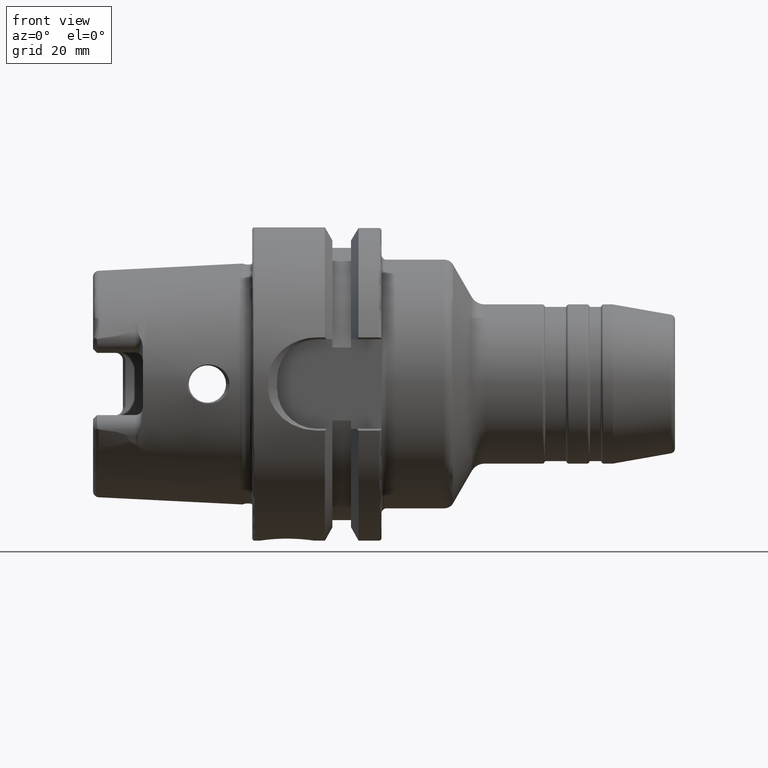
[diagram: clean part render]
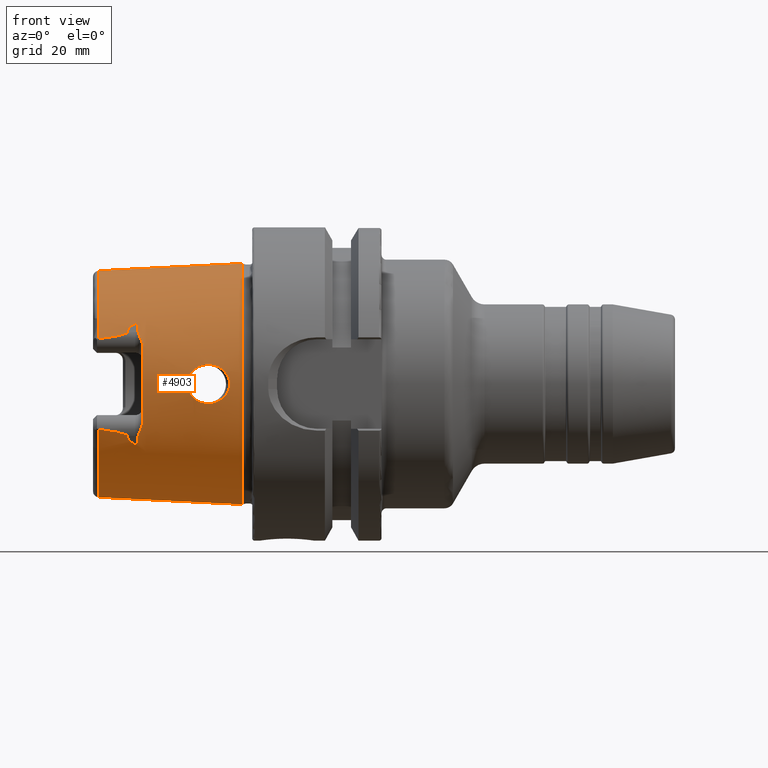
[diagram: same view with one face highlighted and labeled with its STEP entity id]
A machine part, front view. The second image highlights one B-rep face of the part: STEP entity #4903.
In plain terms, the highlighted conical surface has half-angle 2.868 deg.
Its self-contained STEP definition (entity closure, byte-faithful):
#1349=CARTESIAN_POINT('',(-3.086004333271E1,0.E0,0.E0));
#1350=DIRECTION('',(-1.E0,0.E0,0.E0));
#1351=DIRECTION('',(0.E0,0.E0,-1.E0));
#1352=AXIS2_PLACEMENT_3D('',#1349,#1350,#1351);
#1354=CARTESIAN_POINT('',(-3.086004333271E1,-2.086981840766E1,
-9.117659021249E0));
#1355=CARTESIAN_POINT('',(-3.065605186921E1,-2.087009790144E1,
-9.142546682600E0));
#1356=CARTESIAN_POINT('',(-3.026548971795E1,-2.087000011471E1,
-9.191475209956E0));
#1357=CARTESIAN_POINT('',(-2.973365321821E1,-2.086810691684E1,
-9.261644143754E0));
#1358=CARTESIAN_POINT('',(-2.925038551401E1,-2.086470072146E1,
-9.328786458642E0));
#1359=CARTESIAN_POINT('',(-2.880157988887E1,-2.085984936823E1,
-9.394516747198E0));
#1360=CARTESIAN_POINT('',(-2.838907941827E1,-2.085367010435E1,
-9.458361489324E0));
#1361=CARTESIAN_POINT('',(-2.802099682424E1,-2.084652664288E1,
-9.518574595620E0));
#1362=CARTESIAN_POINT('',(-2.767812179380E1,-2.083824707065E1,
-9.577892562152E0));
#1363=CARTESIAN_POINT('',(-2.735909724315E1,-2.082880059047E1,
-9.636540338401E0));
#1364=CARTESIAN_POINT('',(-2.707640752188E1,-2.081875776007E1,
-9.691819563709E0));
#1365=CARTESIAN_POINT('',(-2.681109569702E1,-2.080761261851E1,
-9.747101291047E0));
#1366=CARTESIAN_POINT('',(-2.656858158621E1,-2.079554827328E1,
-9.801340213004E0));
#1367=CARTESIAN_POINT('',(-2.635507856236E1,-2.078317780740E1,
-9.852543087215E0));
#1368=CARTESIAN_POINT('',(-2.614343140954E1,-2.076877229942E1,
-9.907525856621E0));
#1369=CARTESIAN_POINT('',(-2.596459737730E1,-2.075441286803E1,
-9.958294561477E0));
#1370=CARTESIAN_POINT('',(-2.579520406731E1,-2.073852104516E1,
-1.001089413177E1));
#1371=CARTESIAN_POINT('',(-2.563886330149E1,-2.072082009527E1,
-1.006541254284E1));
#1372=CARTESIAN_POINT('',(-2.551094126364E1,-2.070354791350E1,
-1.011550881391E1));
#1373=CARTESIAN_POINT('',(-2.537697699431E1,-2.068112228769E1,
-1.017650437323E1));
#1374=CARTESIAN_POINT('',(-2.527062763811E1,-2.065753992865E1,
-1.023629340194E1));
#1375=CARTESIAN_POINT('',(-2.518213991029E1,-2.063064078682E1,
-1.030035138509E1));
#1376=CARTESIAN_POINT('',(-2.511551447564E1,-2.059710280776E1,
-1.037470366444E1));
#1377=CARTESIAN_POINT('',(-2.509792629022E1,-2.057060375039E1,
-1.042902505095E1));
#1378=CARTESIAN_POINT('',(-2.509832943528E1,-2.055609878966E1,
-1.045749263925E1));
#1380=CARTESIAN_POINT('',(-2.509832943528E1,-2.055609878966E1,
-1.045749263925E1));
#1381=CARTESIAN_POINT('',(-2.509973452206E1,-2.050554446019E1,
-1.055671109738E1));
#1382=CARTESIAN_POINT('',(-2.507065476512E1,-2.040407944593E1,
-1.075584740029E1));
#1383=CARTESIAN_POINT('',(-2.492546543353E1,-2.024884407642E1,
-1.106051396733E1));
#1384=CARTESIAN_POINT('',(-2.468318136842E1,-2.009639154268E1,
-1.135971891163E1));
#1385=CARTESIAN_POINT('',(-2.435973964364E1,-1.995041487066E1,
-1.164621426170E1));
#1386=CARTESIAN_POINT('',(-2.396639941619E1,-1.981051447172E1,
-1.192078425439E1));
#1387=CARTESIAN_POINT('',(-2.366236291861E1,-1.972062082665E1,
-1.209721046657E1));
#1388=CARTESIAN_POINT('',(-2.35E1,-1.967619090430E1,-1.218440909893E1));
#1390=CARTESIAN_POINT('',(-2.35E1,-1.967619090430E1,1.218440909893E1));
#1391=CARTESIAN_POINT('',(-2.366273962512E1,-1.972072391079E1,
1.209700815256E1));
#1392=CARTESIAN_POINT('',(-2.396737226811E1,-1.981081058458E1,
1.192020310018E1));
#1393=CARTESIAN_POINT('',(-2.436114053628E1,-1.995096134710E1,
1.164514174130E1));
#1394=CARTESIAN_POINT('',(-2.468459443081E1,-2.009709754078E1,
1.135833331235E1));
#1395=CARTESIAN_POINT('',(-2.492685004054E1,-2.024992689999E1,
1.105838880642E1));
#1396=CARTESIAN_POINT('',(-2.507099685322E1,-2.040484030157E1,
1.075435413702E1));
#1397=CARTESIAN_POINT('',(-2.509972603515E1,-2.050584981529E1,
1.055611180425E1));
#1398=CARTESIAN_POINT('',(-2.509832943528E1,-2.055609878966E1,
1.045749263925E1));
#1400=CARTESIAN_POINT('',(-3.086004333271E1,-2.086981840766E1,
9.117659021249E0));
#1401=CARTESIAN_POINT('',(-3.065605186921E1,-2.087009790144E1,
9.142546682600E0));
#1402=CARTESIAN_POINT('',(-3.026548971795E1,-2.087000011471E1,
9.191475209956E0));
#1403=CARTESIAN_POINT('',(-2.973365321821E1,-2.086810691684E1,
9.261644143754E0));
#1404=CARTESIAN_POINT('',(-2.925038551401E1,-2.086470072146E1,
9.328786458642E0));
#1405=CARTESIAN_POINT('',(-2.880157988887E1,-2.085984936823E1,
9.394516747198E0));
#1406=CARTESIAN_POINT('',(-2.838907941827E1,-2.085367010435E1,
9.458361489324E0));
#1407=CARTESIAN_POINT('',(-2.802099682424E1,-2.084652664288E1,
9.518574595620E0));
#1408=CARTESIAN_POINT('',(-2.767812179380E1,-2.083824707065E1,
9.577892562152E0));
#1409=CARTESIAN_POINT('',(-2.735909724315E1,-2.082880059047E1,
9.636540338401E0));
#1410=CARTESIAN_POINT('',(-2.707640752188E1,-2.081875776007E1,
9.691819563709E0));
#1411=CARTESIAN_POINT('',(-2.681109569702E1,-2.080761261851E1,
9.747101291047E0));
#1412=CARTESIAN_POINT('',(-2.656858158621E1,-2.079554827328E1,
9.801340213004E0));
#1413=CARTESIAN_POINT('',(-2.635507856236E1,-2.078317780740E1,
9.852543087215E0));
#1414=CARTESIAN_POINT('',(-2.614343140954E1,-2.076877229942E1,
9.907525856621E0));
#1415=CARTESIAN_POINT('',(-2.596459737730E1,-2.075441286803E1,
9.958294561477E0));
#1416=CARTESIAN_POINT('',(-2.579520406731E1,-2.073852104516E1,
1.001089413177E1));
#1417=CARTESIAN_POINT('',(-2.563886330149E1,-2.072082009527E1,
1.006541254284E1));
#1418=CARTESIAN_POINT('',(-2.551094126364E1,-2.070354791350E1,
1.011550881391E1));
#1419=CARTESIAN_POINT('',(-2.537697699431E1,-2.068112228769E1,
1.017650437323E1));
#1420=CARTESIAN_POINT('',(-2.527062763811E1,-2.065753992865E1,
1.023629340194E1));
#1421=CARTESIAN_POINT('',(-2.518213991029E1,-2.063064078682E1,
1.030035138509E1));
#1422=CARTESIAN_POINT('',(-2.511551447564E1,-2.059710280776E1,
1.037470366444E1));
#1423=CARTESIAN_POINT('',(-2.509792629022E1,-2.057060375039E1,
1.042902505095E1));
#1424=CARTESIAN_POINT('',(-2.509832943528E1,-2.055609878966E1,
1.045749263925E1));
#1426=CARTESIAN_POINT('',(-3.086004333271E1,0.E0,0.E0));
#1427=DIRECTION('',(-1.E0,0.E0,0.E0));
#1428=DIRECTION('',(0.E0,-9.163649919573E-1,4.003438540993E-1));
#1429=AXIS2_PLACEMENT_3D('',#1426,#1427,#1428);
#1431=DIRECTION('',(-9.987474310439E-1,-1.043943046318E-10,-5.003567710383E-2));
#1432=VECTOR('',#1431,2.889623723507E1);
#1433=CARTESIAN_POINT('',(-2.000000627352E0,3.013169918385E-9,
2.422041252602E1));
#1434=LINE('',#1433,#1432);
#1435=CARTESIAN_POINT('',(-2.000078966146E0,0.E0,0.E0));
#1436=DIRECTION('',(-1.E0,0.E0,0.E0));
#1437=DIRECTION('',(0.E0,0.E0,-1.E0));
#1438=AXIS2_PLACEMENT_3D('',#1435,#1436,#1437);
#1440=DIRECTION('',(-9.987474310439E-1,1.043955103514E-10,5.003567710383E-2));
#1441=VECTOR('',#1440,2.889623723507E1);
#1442=CARTESIAN_POINT('',(-2.000000627352E0,-3.013172538588E-9,
-2.422041252602E1));
#1443=LINE('',#1442,#1441);
#1444=CARTESIAN_POINT('',(-4.550876813471E0,-2.409262908457E1,0.E0));
#1445=CARTESIAN_POINT('',(-4.550876813471E0,-2.409262908457E1,
-2.877967437564E-1));
#1446=CARTESIAN_POINT('',(-4.618402668122E0,-2.407904026989E1,
-8.400480277036E-1));
#1447=CARTESIAN_POINT('',(-4.894270861234E0,-2.402533951533E1,
-1.607621503292E0));
#1448=CARTESIAN_POINT('',(-5.311993211538E0,-2.394889792202E1,
-2.281051834978E0));
#1449=CARTESIAN_POINT('',(-5.862519901701E0,-2.385721878678E1,
-2.867738815602E0));
#1450=CARTESIAN_POINT('',(-6.525866941490E0,-2.376062455518E1,
-3.345027969698E0));
#1451=CARTESIAN_POINT('',(-7.283123635549E0,-2.366962568370E1,
-3.694964458018E0));
#1452=CARTESIAN_POINT('',(-8.068113572350E0,-2.359725545319E1,
-3.894815234736E0));
#1453=CARTESIAN_POINT('',(-8.870763704734E0,-2.354641057253E1,
-3.954593366443E0));
#1454=CARTESIAN_POINT('',(-9.668430299005E0,-2.351943467091E1,
-3.874115224399E0));
#1455=CARTESIAN_POINT('',(-1.044589907295E1,-2.351586499835E1,
-3.652697425224E0));
#1456=CARTESIAN_POINT('',(-1.117274859870E1,-2.353296697451E1,
-3.292217258769E0));
#1457=CARTESIAN_POINT('',(-1.181517087273E1,-2.356448626338E1,
-2.804326645060E0));
#1458=CARTESIAN_POINT('',(-1.234145757444E1,-2.360166761628E1,
-2.212677597337E0));
#1459=CARTESIAN_POINT('',(-1.273619031472E1,-2.363617974383E1,
-1.537866875102E0));
#1460=CARTESIAN_POINT('',(-1.298600958619E1,-2.366096015370E1,
-7.912407707895E-1));
#1461=CARTESIAN_POINT('',(-1.304439190524E1,-2.366711362744E1,
-2.691253192330E-1));
#1462=CARTESIAN_POINT('',(-1.304439190524E1,-2.366711362744E1,0.E0));
#1464=CARTESIAN_POINT('',(-1.304439190524E1,-2.366711362744E1,0.E0));
#1465=CARTESIAN_POINT('',(-1.304439190524E1,-2.366711362744E1,
2.703037479710E-1));
#1466=CARTESIAN_POINT('',(-1.298550406978E1,-2.366090648148E1,
7.943947598310E-1));
#1467=CARTESIAN_POINT('',(-1.273401403229E1,-2.363596973658E1,
1.542974157060E0));
#1468=CARTESIAN_POINT('',(-1.233736358375E1,-2.360133785537E1,
2.218343463292E0));
#1469=CARTESIAN_POINT('',(-1.181014932937E1,-2.356418192045E1,
2.808926516834E0));
#1470=CARTESIAN_POINT('',(-1.116702224785E1,-2.353275771571E1,
3.295736926792E0));
#1471=CARTESIAN_POINT('',(-1.043963924537E1,-2.351579580285E1,
3.655159652366E0));
#1472=CARTESIAN_POINT('',(-9.660475865824E0,-2.351957664188E1,
3.875690102308E0));
#1473=CARTESIAN_POINT('',(-8.862519366235E0,-2.354681821912E1,
3.954658875556E0));
#1474=CARTESIAN_POINT('',(-8.061144349956E0,-2.359781764260E1,
3.893566864752E0));
#1475=CARTESIAN_POINT('',(-7.278331496707E0,-2.367015194234E1,
3.693151756651E0));
#1476=CARTESIAN_POINT('',(-6.522034984199E0,-2.376113111253E1,
3.342852826910E0));
#1477=CARTESIAN_POINT('',(-5.857697434742E0,-2.385796493762E1,
2.863685030162E0));
#1478=CARTESIAN_POINT('',(-5.307304902799E0,-2.394972134456E1,
2.275049448592E0));
#1479=CARTESIAN_POINT('',(-4.890994728381E0,-2.402596524863E1,
1.600623477393E0));
#1480=CARTESIAN_POINT('',(-4.617587055612E0,-2.407920576001E1,
8.353714922673E-1));
#1481=CARTESIAN_POINT('',(-4.550876813471E0,-2.409262908457E1,
2.859699745206E-1));
#1482=CARTESIAN_POINT('',(-4.550876813471E0,-2.409262908457E1,0.E0));
#1726=CARTESIAN_POINT('',(-2.2E1,0.E0,0.E0));
#1727=DIRECTION('',(1.E0,0.E0,0.E0));
#1728=DIRECTION('',(0.E0,-9.478058907476E-1,3.188479158848E-1));
#1729=AXIS2_PLACEMENT_3D('',#1726,#1727,#1728);
#1750=CARTESIAN_POINT('',(-2.294092122685E1,-2.065240209098E1,
1.050656162214E1));
#1751=CARTESIAN_POINT('',(-2.294111150362E1,-2.070060050173E1,
1.041179857036E1));
#1752=CARTESIAN_POINT('',(-2.291155618279E1,-2.079810368142E1,
1.022013150145E1));
#1753=CARTESIAN_POINT('',(-2.280220882019E1,-2.094364655543E1,
9.931344787062E0));
#1754=CARTESIAN_POINT('',(-2.265591813207E1,-2.109587424253E1,
9.621813423491E0));
#1755=CARTESIAN_POINT('',(-2.248922631050E1,-2.125829077290E1,
9.278752706811E0));
#1756=CARTESIAN_POINT('',(-2.232290478409E1,-2.142677823370E1,
8.905105674939E0));
#1757=CARTESIAN_POINT('',(-2.216473996003E1,-2.160943095424E1,
8.475268221827E0));
#1758=CARTESIAN_POINT('',(-2.203800494772E1,-2.180688467124E1,
7.973400274330E0));
#1759=CARTESIAN_POINT('',(-2.2E1,-2.194020305932E1,7.600470353620E0));
#1760=CARTESIAN_POINT('',(-2.2E1,-2.200658163281E1,7.403153702532E0));
#1762=CARTESIAN_POINT('',(-2.35E1,-1.967619090430E1,1.218440909893E1));
#1763=CARTESIAN_POINT('',(-2.347055544183E1,-1.966813352615E1,
1.220022259394E1));
#1764=CARTESIAN_POINT('',(-2.341241754079E1,-1.966296524110E1,
1.221405587161E1));
#1765=CARTESIAN_POINT('',(-2.332691180913E1,-1.968819645611E1,
1.218153439148E1));
#1766=CARTESIAN_POINT('',(-2.326562915993E1,-1.972716128503E1,
1.212423440230E1));
#1767=CARTESIAN_POINT('',(-2.321457824419E1,-1.977282283767E1,
1.205455891523E1));
#1768=CARTESIAN_POINT('',(-2.317237092190E1,-1.982191871511E1,
1.197776914898E1));
#1769=CARTESIAN_POINT('',(-2.313405569140E1,-1.987650319484E1,
1.189074412018E1));
#1770=CARTESIAN_POINT('',(-2.309893102693E1,-1.993698168379E1,
1.179256148436E1));
#1771=CARTESIAN_POINT('',(-2.306619173465E1,-2.000452504011E1,
1.168092979418E1));
#1772=CARTESIAN_POINT('',(-2.303585792279E1,-2.007988592186E1,
1.155402609307E1));
#1773=CARTESIAN_POINT('',(-2.300835372165E1,-2.016335008984E1,
1.141062860755E1));
#1774=CARTESIAN_POINT('',(-2.298444209752E1,-2.025420771202E1,
1.125113528522E1));
#1775=CARTESIAN_POINT('',(-2.296476112948E1,-2.035248276247E1,
1.107452667370E1));
#1776=CARTESIAN_POINT('',(-2.295058450020E1,-2.045393521043E1,
1.088757448663E1));
#1777=CARTESIAN_POINT('',(-2.294234633039E1,-2.055556823074E1,
1.069534304728E1));
#1778=CARTESIAN_POINT('',(-2.294079499416E1,-2.062042648306E1,
1.056942896863E1));
#1779=CARTESIAN_POINT('',(-2.294092122685E1,-2.065240209098E1,
1.050656162214E1));
#1794=CARTESIAN_POINT('',(-2.2E1,-2.200658163281E1,-7.403153702532E0));
#1795=CARTESIAN_POINT('',(-2.2E1,-2.194041206251E1,-7.599849071691E0));
#1796=CARTESIAN_POINT('',(-2.203791204013E1,-2.180777367988E1,
-7.970791535206E0));
#1797=CARTESIAN_POINT('',(-2.216124332882E1,-2.161431807221E1,
-8.463121846466E0));
#1798=CARTESIAN_POINT('',(-2.231690544694E1,-2.143319349692E1,
-8.890437278107E0));
#1799=CARTESIAN_POINT('',(-2.248243264446E1,-2.126495040771E1,
-9.264341358459E0));
#1800=CARTESIAN_POINT('',(-2.264962455228E1,-2.110208200308E1,
-9.608988754332E0));
#1801=CARTESIAN_POINT('',(-2.279820546886E1,-2.094826699260E1,
-9.922113798161E0));
#1802=CARTESIAN_POINT('',(-2.291041611879E1,-2.080066788900E1,
-1.021509432093E1));
#1803=CARTESIAN_POINT('',(-2.294111504954E1,-2.070149870796E1,
-1.041003260418E1));
#1804=CARTESIAN_POINT('',(-2.294092122685E1,-2.065240209098E1,
-1.050656162214E1));
#1845=CARTESIAN_POINT('',(-2.294092122685E1,-2.065240209098E1,
-1.050656162214E1));
#1846=CARTESIAN_POINT('',(-2.294079811365E1,-2.062121667260E1,
-1.056787537441E1));
#1847=CARTESIAN_POINT('',(-2.294227405167E1,-2.055830300011E1,
-1.069004036703E1));
#1848=CARTESIAN_POINT('',(-2.294989885781E1,-2.046110801024E1,
-1.087409737897E1));
#1849=CARTESIAN_POINT('',(-2.296285463626E1,-2.036461322623E1,
-1.105234197859E1));
#1850=CARTESIAN_POINT('',(-2.298069488493E1,-2.027124871589E1,
-1.122074715811E1));
#1851=CARTESIAN_POINT('',(-2.300253013390E1,-2.018397484429E1,
-1.137466436651E1));
#1852=CARTESIAN_POINT('',(-2.302710385389E1,-2.010504782816E1,
-1.151103285332E1));
#1853=CARTESIAN_POINT('',(-2.305403844285E1,-2.003337429027E1,
-1.163257720670E1));
#1854=CARTESIAN_POINT('',(-2.308354622181E1,-1.996741257225E1,
-1.174248406628E1));
#1855=CARTESIAN_POINT('',(-2.311637460329E1,-1.990558888034E1,
-1.184374034503E1));
#1856=CARTESIAN_POINT('',(-2.315335701227E1,-1.984764484128E1,
-1.193695919151E1));
#1857=CARTESIAN_POINT('',(-2.319380614677E1,-1.979554781478E1,
-1.201922523601E1));
#1858=CARTESIAN_POINT('',(-2.324122285505E1,-1.974731655480E1,
-1.209372623764E1));
#1859=CARTESIAN_POINT('',(-2.329363990695E1,-1.970780502573E1,
-1.215297060557E1));
#1860=CARTESIAN_POINT('',(-2.335697965131E1,-1.967678487987E1,
-1.219707368641E1));
#1861=CARTESIAN_POINT('',(-2.343048235888E1,-1.966376869273E1,
-1.221104561254E1));
#1862=CARTESIAN_POINT('',(-2.347671290010E1,-1.966981848843E1,
-1.219691566928E1));
#1863=CARTESIAN_POINT('',(-2.35E1,-1.967619090430E1,-1.218440909893E1));
#2805=CARTESIAN_POINT('',(-2.000078966146E0,0.E0,-2.422042115892E1));
#2806=CARTESIAN_POINT('',(-2.000078966146E0,0.E0,2.422042115892E1));
#2807=VERTEX_POINT('',#2805);
#2808=VERTEX_POINT('',#2806);
#2920=CARTESIAN_POINT('',(-2.2E1,-2.200658163281E1,-7.403153702532E0));
#2922=VERTEX_POINT('',#2920);
#2923=CARTESIAN_POINT('',(-2.35E1,-1.967619090430E1,-1.218440909893E1));
#2924=VERTEX_POINT('',#2923);
#2926=CARTESIAN_POINT('',(-2.2E1,-2.200658163281E1,7.403153702532E0));
#2928=VERTEX_POINT('',#2926);
#2933=CARTESIAN_POINT('',(-2.35E1,-1.967619090430E1,1.218440909893E1));
#2934=VERTEX_POINT('',#2933);
#2935=VERTEX_POINT('',#1380);
#2936=CARTESIAN_POINT('',(-2.509832943528E1,-2.055609878966E1,
1.045749263925E1));
#2937=VERTEX_POINT('',#2936);
#2938=VERTEX_POINT('',#1779);
#2939=VERTEX_POINT('',#1845);
#2980=CARTESIAN_POINT('',(-3.086004333271E1,0.E0,-2.277456973022E1));
#2981=CARTESIAN_POINT('',(-3.086004333271E1,-2.086981840766E1,
-9.117659021249E0));
#2982=VERTEX_POINT('',#2980);
#2983=VERTEX_POINT('',#2981);
#2986=CARTESIAN_POINT('',(-3.086004333271E1,0.E0,2.277456973022E1));
#2988=VERTEX_POINT('',#2986);
#2990=CARTESIAN_POINT('',(-3.086004333271E1,-2.086981840766E1,
9.117659021249E0));
#2991=VERTEX_POINT('',#2990);
#3075=CARTESIAN_POINT('',(-4.550876813471E0,-2.409262908457E1,0.E0));
#3077=VERTEX_POINT('',#3075);
#3079=CARTESIAN_POINT('',(-1.304439190524E1,-2.366711362744E1,0.E0));
#3081=VERTEX_POINT('',#3079);
#4866=CARTESIAN_POINT('',(-1.643002229390E1,0.E0,0.E0));
#4867=DIRECTION('',(1.E0,0.E0,0.E0));
#4868=DIRECTION('',(0.E0,0.E0,1.E0));
#4869=AXIS2_PLACEMENT_3D('',#4866,#4867,#4868);
#4870=CONICAL_SURFACE('',#4869,2.349749739118E1,2.86805556E0);
#4871=ORIENTED_EDGE('',*,*,#3335,.T.);
#4873=ORIENTED_EDGE('',*,*,#4872,.T.);
#4875=ORIENTED_EDGE('',*,*,#4874,.T.);
#4877=ORIENTED_EDGE('',*,*,#4876,.F.);
#4879=ORIENTED_EDGE('',*,*,#4878,.F.);
#4881=ORIENTED_EDGE('',*,*,#4880,.F.);
#4883=ORIENTED_EDGE('',*,*,#4882,.F.);
#4885=ORIENTED_EDGE('',*,*,#4884,.F.);
#4887=ORIENTED_EDGE('',*,*,#4886,.T.);
#4889=ORIENTED_EDGE('',*,*,#4888,.F.);
#4891=ORIENTED_EDGE('',*,*,#4890,.T.);
#4892=ORIENTED_EDGE('',*,*,#3299,.F.);
#4893=ORIENTED_EDGE('',*,*,#4860,.F.);
#4894=ORIENTED_EDGE('',*,*,#3295,.T.);
#4895=EDGE_LOOP('',(#4871,#4873,#4875,#4877,#4879,#4881,#4883,#4885,#4887,#4889,
#4891,#4892,#4893,#4894));
#4896=FACE_OUTER_BOUND('',#4895,.F.);
#4898=ORIENTED_EDGE('',*,*,#4897,.F.);
#4900=ORIENTED_EDGE('',*,*,#4899,.F.);
#4901=EDGE_LOOP('',(#4898,#4900));
#4902=FACE_BOUND('',#4901,.F.);
#4903=ADVANCED_FACE('',(#4896,#4902),#4870,.T.);
#1353=CIRCLE('',#1352,2.277456973022E1);
#1379=B_SPLINE_CURVE_WITH_KNOTS('',3,(#1354,#1355,#1356,#1357,#1358,#1359,#1360,
#1361,#1362,#1363,#1364,#1365,#1366,#1367,#1368,#1369,#1370,#1371,#1372,#1373,
#1374,#1375,#1376,#1377,#1378),.UNSPECIFIED.,.F.,.F.,(4,1,1,1,1,1,1,1,1,1,1,1,1,
1,1,1,1,1,1,1,1,1,4),(0.E0,4.545454545455E-2,9.090909090909E-2,
1.363636363636E-1,1.818181818182E-1,2.272727272727E-1,2.727272727273E-1,
3.181818181818E-1,3.636363636364E-1,4.090909090909E-1,4.545454545455E-1,5.E-1,
5.454545454545E-1,5.909090909091E-1,6.363636363636E-1,6.818181818182E-1,
7.272727272727E-1,7.727272727273E-1,8.181818181818E-1,8.636363636364E-1,
9.090909090909E-1,9.545454545455E-1,1.E0),.UNSPECIFIED.);
#1389=B_SPLINE_CURVE_WITH_KNOTS('',3,(#1380,#1381,#1382,#1383,#1384,#1385,#1386,
#1387,#1388),.UNSPECIFIED.,.F.,.F.,(4,1,1,1,1,1,4),(0.E0,1.666666666667E-1,
3.333333333333E-1,5.E-1,6.666666666667E-1,8.333333333333E-1,1.E0),
.UNSPECIFIED.);
#1399=B_SPLINE_CURVE_WITH_KNOTS('',3,(#1390,#1391,#1392,#1393,#1394,#1395,#1396,
#1397,#1398),.UNSPECIFIED.,.F.,.F.,(4,1,1,1,1,1,4),(0.E0,1.666666666667E-1,
3.333333333333E-1,5.E-1,6.666666666667E-1,8.333333333333E-1,1.E0),
.UNSPECIFIED.);
#1425=B_SPLINE_CURVE_WITH_KNOTS('',3,(#1400,#1401,#1402,#1403,#1404,#1405,#1406,
#1407,#1408,#1409,#1410,#1411,#1412,#1413,#1414,#1415,#1416,#1417,#1418,#1419,
#1420,#1421,#1422,#1423,#1424),.UNSPECIFIED.,.F.,.F.,(4,1,1,1,1,1,1,1,1,1,1,1,1,
1,1,1,1,1,1,1,1,1,4),(0.E0,4.545454545455E-2,9.090909090909E-2,
1.363636363636E-1,1.818181818182E-1,2.272727272727E-1,2.727272727273E-1,
3.181818181818E-1,3.636363636364E-1,4.090909090909E-1,4.545454545455E-1,5.E-1,
5.454545454545E-1,5.909090909091E-1,6.363636363636E-1,6.818181818182E-1,
7.272727272727E-1,7.727272727273E-1,8.181818181818E-1,8.636363636364E-1,
9.090909090909E-1,9.545454545455E-1,1.E0),.UNSPECIFIED.);
#1430=CIRCLE('',#1429,2.277456973022E1);
#1439=CIRCLE('',#1438,2.422042115892E1);
#1463=B_SPLINE_CURVE_WITH_KNOTS('',3,(#1444,#1445,#1446,#1447,#1448,#1449,#1450,
#1451,#1452,#1453,#1454,#1455,#1456,#1457,#1458,#1459,#1460,#1461,#1462),
.UNSPECIFIED.,.F.,.F.,(4,1,1,1,1,1,1,1,1,1,1,1,1,1,1,1,4),(0.E0,6.25E-2,1.25E-1,
1.875E-1,2.5E-1,3.125E-1,3.75E-1,4.375E-1,5.E-1,5.625E-1,6.25E-1,6.875E-1,
7.5E-1,8.125E-1,8.75E-1,9.375E-1,1.E0),.UNSPECIFIED.);
#1483=B_SPLINE_CURVE_WITH_KNOTS('',3,(#1464,#1465,#1466,#1467,#1468,#1469,#1470,
#1471,#1472,#1473,#1474,#1475,#1476,#1477,#1478,#1479,#1480,#1481,#1482),
.UNSPECIFIED.,.F.,.F.,(4,1,1,1,1,1,1,1,1,1,1,1,1,1,1,1,4),(0.E0,6.25E-2,1.25E-1,
1.875E-1,2.5E-1,3.125E-1,3.75E-1,4.375E-1,5.E-1,5.625E-1,6.25E-1,6.875E-1,
7.5E-1,8.125E-1,8.75E-1,9.375E-1,1.E0),.UNSPECIFIED.);
#1730=CIRCLE('',#1729,2.321844783582E1);
#1761=B_SPLINE_CURVE_WITH_KNOTS('',3,(#1750,#1751,#1752,#1753,#1754,#1755,#1756,
#1757,#1758,#1759,#1760),.UNSPECIFIED.,.F.,.F.,(4,1,1,1,1,1,1,1,4),(0.E0,
1.25E-1,2.5E-1,3.75E-1,5.E-1,6.25E-1,7.5E-1,8.75E-1,1.E0),.UNSPECIFIED.);
#1780=B_SPLINE_CURVE_WITH_KNOTS('',3,(#1762,#1763,#1764,#1765,#1766,#1767,#1768,
#1769,#1770,#1771,#1772,#1773,#1774,#1775,#1776,#1777,#1778,#1779),
.UNSPECIFIED.,.F.,.F.,(4,1,1,1,1,1,1,1,1,1,1,1,1,1,1,4),(0.E0,6.666666666667E-2,
1.333333333333E-1,2.E-1,2.666666666667E-1,3.333333333333E-1,4.E-1,
4.666666666667E-1,5.333333333333E-1,6.E-1,6.666666666667E-1,7.333333333333E-1,
8.E-1,8.666666666667E-1,9.333333333333E-1,1.E0),.UNSPECIFIED.);
#1805=B_SPLINE_CURVE_WITH_KNOTS('',3,(#1794,#1795,#1796,#1797,#1798,#1799,#1800,
#1801,#1802,#1803,#1804),.UNSPECIFIED.,.F.,.F.,(4,1,1,1,1,1,1,1,4),(0.E0,
1.25E-1,2.5E-1,3.75E-1,5.E-1,6.25E-1,7.5E-1,8.75E-1,1.E0),.UNSPECIFIED.);
#1864=B_SPLINE_CURVE_WITH_KNOTS('',3,(#1845,#1846,#1847,#1848,#1849,#1850,#1851,
#1852,#1853,#1854,#1855,#1856,#1857,#1858,#1859,#1860,#1861,#1862,#1863),
.UNSPECIFIED.,.F.,.F.,(4,1,1,1,1,1,1,1,1,1,1,1,1,1,1,1,4),(0.E0,6.25E-2,1.25E-1,
1.875E-1,2.5E-1,3.125E-1,3.75E-1,4.375E-1,5.E-1,5.625E-1,6.25E-1,6.875E-1,
7.5E-1,8.125E-1,8.75E-1,9.375E-1,1.E0),.UNSPECIFIED.);
#3295=EDGE_CURVE('',#2807,#2982,#1443,.T.);
#3299=EDGE_CURVE('',#2808,#2988,#1434,.T.);
#3335=EDGE_CURVE('',#2982,#2983,#1353,.T.);
#4860=EDGE_CURVE('',#2807,#2808,#1439,.T.);
#4872=EDGE_CURVE('',#2983,#2935,#1379,.T.);
#4874=EDGE_CURVE('',#2935,#2924,#1389,.T.);
#4876=EDGE_CURVE('',#2939,#2924,#1864,.T.);
#4878=EDGE_CURVE('',#2922,#2939,#1805,.T.);
#4880=EDGE_CURVE('',#2928,#2922,#1730,.T.);
#4882=EDGE_CURVE('',#2938,#2928,#1761,.T.);
#4884=EDGE_CURVE('',#2934,#2938,#1780,.T.);
#4886=EDGE_CURVE('',#2934,#2937,#1399,.T.);
#4888=EDGE_CURVE('',#2991,#2937,#1425,.T.);
#4890=EDGE_CURVE('',#2991,#2988,#1430,.T.);
#4897=EDGE_CURVE('',#3077,#3081,#1463,.T.);
#4899=EDGE_CURVE('',#3081,#3077,#1483,.T.);